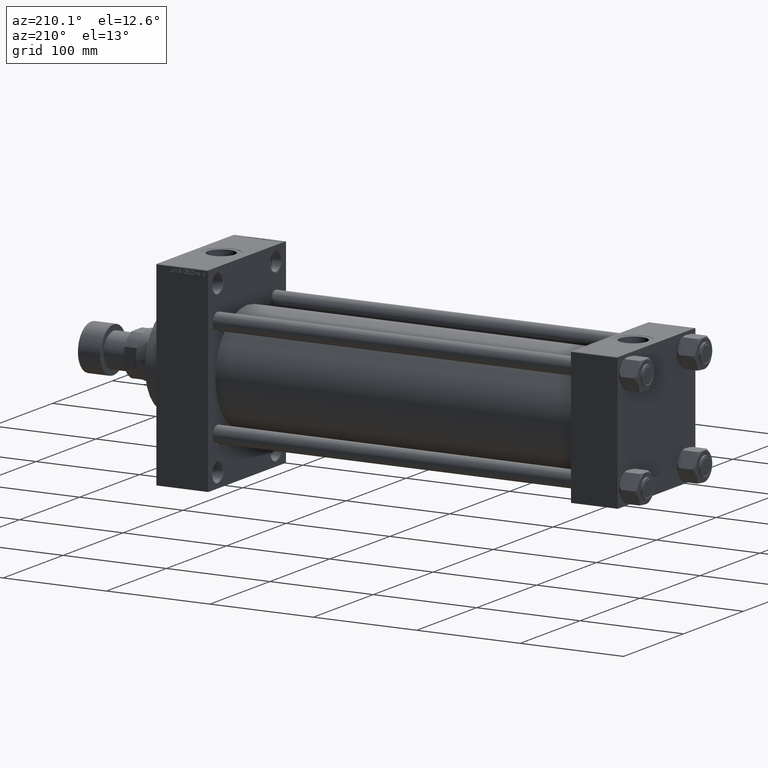
[diagram: clean part render]
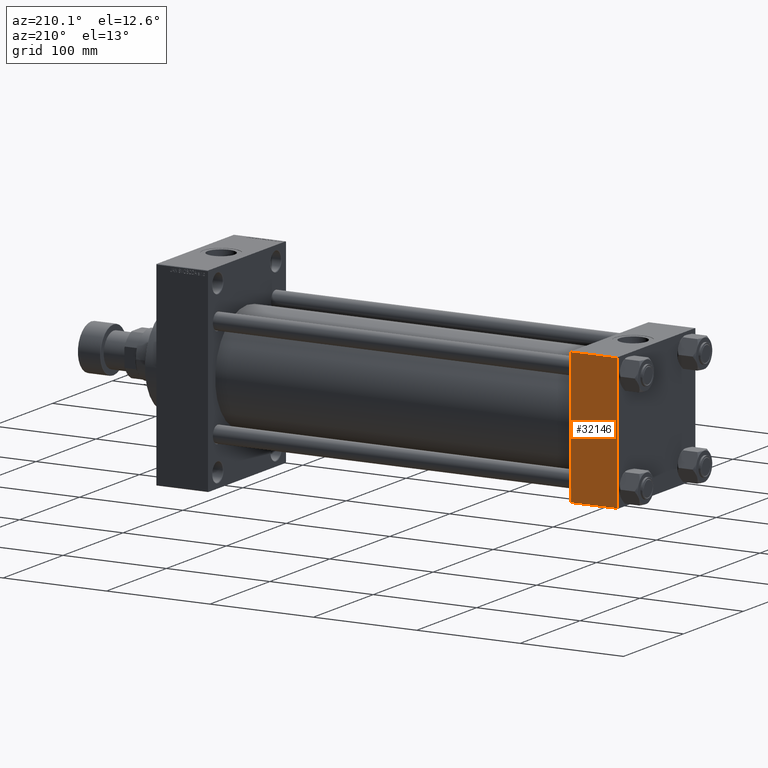
[diagram: same view with one face highlighted and labeled with its STEP entity id]
A machine part, auxiliary view. The second image highlights one B-rep face of the part: STEP entity #32146.
In plain terms, the highlighted planar face has unit normal (0, 1, 0).
Its self-contained STEP definition (entity closure, byte-faithful):
#1049 = CARTESIAN_POINT ( 'NONE',  ( 0.000000000000000000, 65.00000000000000000, 64.49999999999998579 ) ) ;
#6904 = CARTESIAN_POINT ( 'NONE',  ( 45.00000000000000000, 65.00000000000000000, 64.49999999999998579 ) ) ;
#6993 = ORIENTED_EDGE ( 'NONE', *, *, #13095, .T. ) ;
#7609 = CARTESIAN_POINT ( 'NONE',  ( 45.00000000000000000, 65.00000000000000000, -64.49999999999995737 ) ) ;
#8144 = VECTOR ( 'NONE', #27844, 1000.000000000000000 ) ;
#10569 = PLANE ( 'NONE',  #11461 ) ;
#11461 = AXIS2_PLACEMENT_3D ( 'NONE', #47213, #22032, #21303 ) ;
#11544 = CARTESIAN_POINT ( 'NONE',  ( 0.000000000000000000, 65.00000000000000000, -64.49999999999995737 ) ) ;
#13095 = EDGE_CURVE ( 'NONE', #14948, #44477, #38858, .T. ) ;
#13175 = ORIENTED_EDGE ( 'NONE', *, *, #29289, .F. ) ;
#13417 = CARTESIAN_POINT ( 'NONE',  ( 45.00000000000000000, 65.00000000000000000, 65.00000000000001421 ) ) ;
#14312 = VECTOR ( 'NONE', #33254, 1000.000000000000000 ) ;
#14948 = VERTEX_POINT ( 'NONE', #37649 ) ;
#17345 = ORIENTED_EDGE ( 'NONE', *, *, #27837, .T. ) ;
#18501 = VECTOR ( 'NONE', #24067, 1000.000000000000000 ) ;
#21303 = DIRECTION ( 'NONE',  ( 0.000000000000000000, -0.000000000000000000, 1.000000000000000000 ) ) ;
#21631 = VERTEX_POINT ( 'NONE', #1049 ) ;
#21783 = DIRECTION ( 'NONE',  ( 1.000000000000000000, 0.000000000000000000, 0.000000000000000000 ) ) ;
#22032 = DIRECTION ( 'NONE',  ( -0.000000000000000000, 1.000000000000000000, 0.000000000000000000 ) ) ;
#23136 = VECTOR ( 'NONE', #21783, 1000.000000000000000 ) ;
#23831 = LINE ( 'NONE', #38749, #18501 ) ;
#24067 = DIRECTION ( 'NONE',  ( 0.000000000000000000, 0.000000000000000000, -1.000000000000000000 ) ) ;
#25172 = LINE ( 'NONE', #7609, #14312 ) ;
#27837 = EDGE_CURVE ( 'NONE', #21631, #14948, #40369, .T. ) ;
#27844 = DIRECTION ( 'NONE',  ( 0.000000000000000000, 0.000000000000000000, -1.000000000000000000 ) ) ;
#29284 = CARTESIAN_POINT ( 'NONE',  ( 45.00000000000000000, 65.00000000000000000, -64.49999999999995737 ) ) ;
#29289 = EDGE_CURVE ( 'NONE', #21631, #32196, #23831, .T. ) ;
#32146 = ADVANCED_FACE ( 'NONE', ( #44032 ), #10569, .T. ) ;
#32196 = VERTEX_POINT ( 'NONE', #11544 ) ;
#33254 = DIRECTION ( 'NONE',  ( -1.000000000000000000, 0.000000000000000000, 0.000000000000000000 ) ) ;
#37649 = CARTESIAN_POINT ( 'NONE',  ( 45.00000000000000000, 65.00000000000000000, 64.49999999999998579 ) ) ;
#38749 = CARTESIAN_POINT ( 'NONE',  ( 0.000000000000000000, 65.00000000000000000, 65.00000000000001421 ) ) ;
#38858 = LINE ( 'NONE', #13417, #8144 ) ;
#40369 = LINE ( 'NONE', #6904, #23136 ) ;
#44032 = FACE_OUTER_BOUND ( 'NONE', #44544, .T. ) ;
#44477 = VERTEX_POINT ( 'NONE', #29284 ) ;
#44544 = EDGE_LOOP ( 'NONE', ( #6993, #45678, #13175, #17345 ) ) ;
#45208 = EDGE_CURVE ( 'NONE', #44477, #32196, #25172, .T. ) ;
#45678 = ORIENTED_EDGE ( 'NONE', *, *, #45208, .T. ) ;
#47213 = CARTESIAN_POINT ( 'NONE',  ( 45.00000000000000000, 65.00000000000000000, 65.00000000000001421 ) ) ;